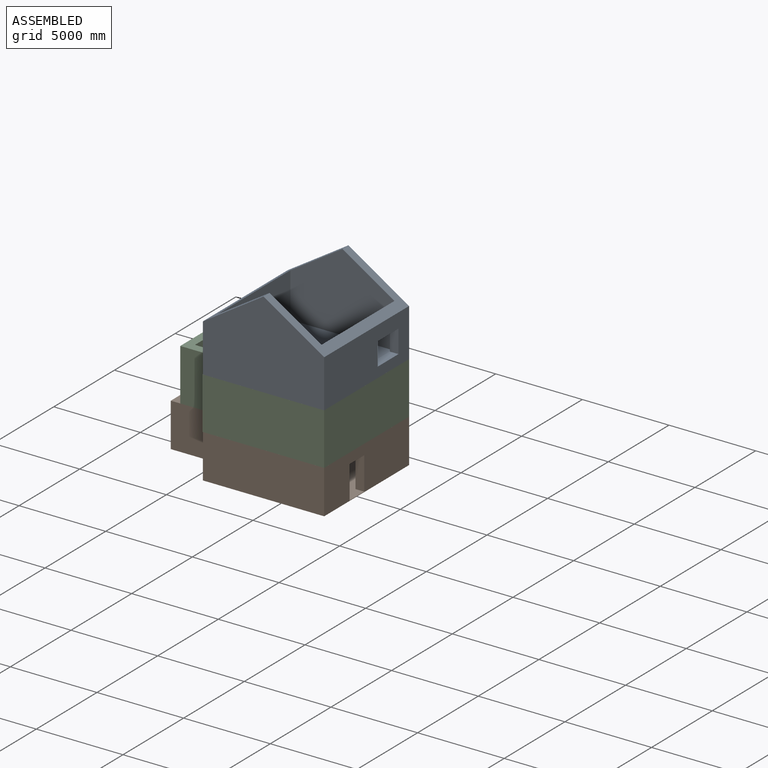
[diagram: assembled view]
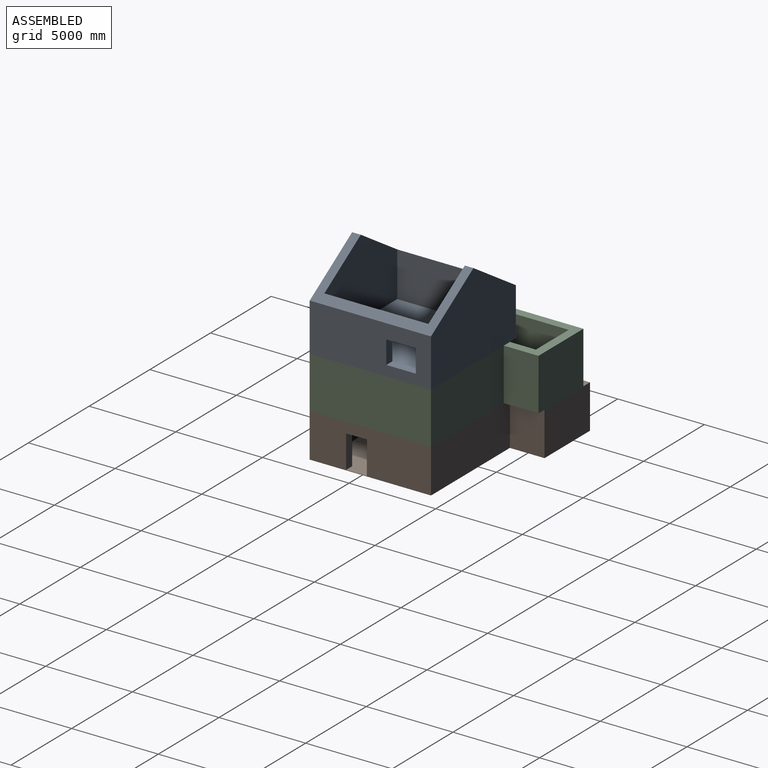
[diagram: assembled view, second angle]
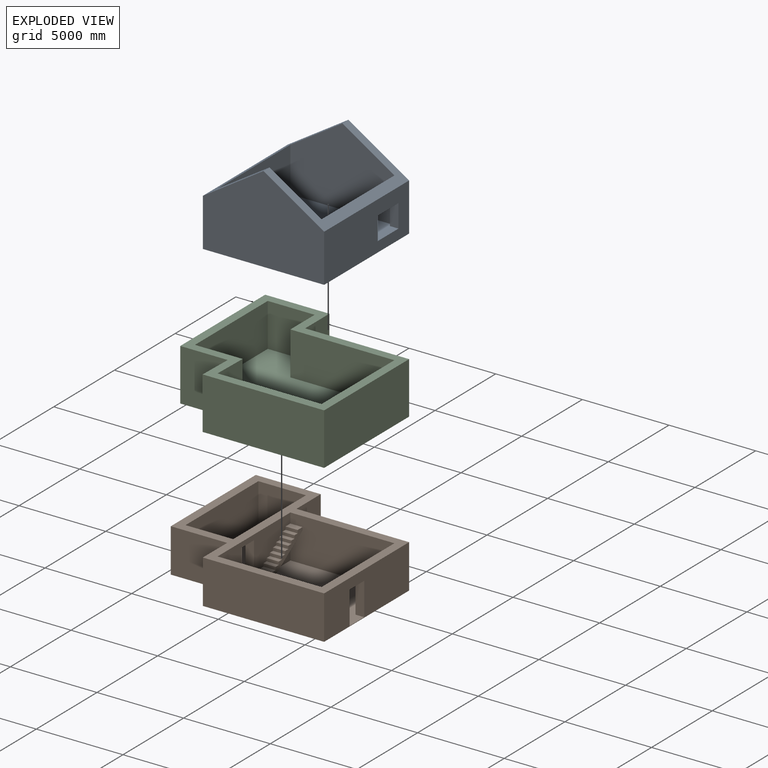
[diagram: exploded view]
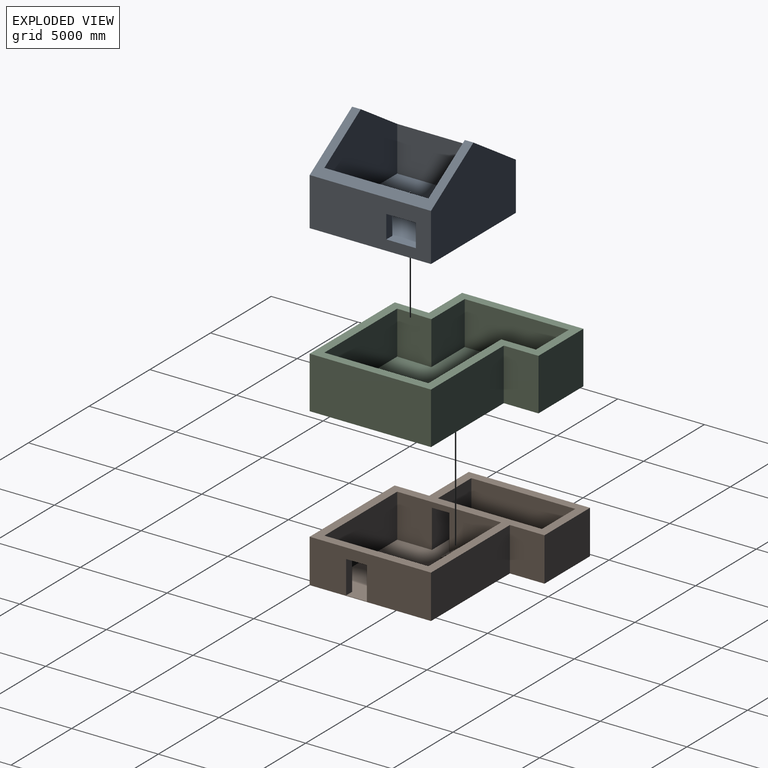
[diagram: exploded view, second angle]
ASSEMBLY  parts=3 mates=6
PART A: 16 faces, bbox 7000x7000x5000 mm
  f0: plane 6000x2588.79mm, normal (-1,0,0), area 13264949.7mm2, adj f2,f4,f5,f7,f12,f13,f14,f15
  f1: plane 7000x2770.25mm, normal (1,0,0), area 17123993mm2, adj f7,f8,f10,f11,f12,f13,f14,f15
  f2: plane 6000x4500mm, normal (0,-1,0), area 21266367.7mm2, adj f0,f3,f5,f6,f7
  f3: plane 6000x2588.79mm, normal (1,0,0), area 15532735.3mm2, adj f2,f4,f5,f6
  f4: plane 6000x4500mm, normal (0,1,0), area 21266367.7mm2, adj f0,f3,f5,f6,f7
  f5: plane 6000x6000mm, normal (0,0,1), area 36000000mm2, adj f0,f2,f3,f4
  f6: plane 7000x3500mm, normal (-0.54,0,0.84), area 7706978.8mm2, adj f2,f3,f4,f7,f9,f10,f11
  f7: plane 7000x3500mm, normal (0.54,0,0.84), area 7706978.8mm2, adj f0,f1,f2,f4,f6,f10,f11
  f8: plane 7000x7000mm, normal (0,0,-1), area 49000000mm2, adj f1,f9,f10,f11
  f9: plane 7000x2770.25mm, normal (-1,0,0), area 19391778.6mm2, adj f6,f8,f10,f11
  f10: plane 7000x5000mm, normal (0,1,0), area 27195889.3mm2, adj f1,f6,f7,f8,f9
  f11: plane 7000x5000mm, normal (0,-1,0), area 27195889.3mm2, adj f1,f6,f7,f8,f9
  f12: plane 1705.26x500mm, normal (0,0,-1), area 852627.8mm2, adj f0,f1,f13,f15
  f13: plane 1329.88x500mm, normal (0,1,0), area 664940.1mm2, adj f0,f1,f12,f14
  f14: plane 1705.26x500mm, normal (0,0,1), area 852627.8mm2, adj f0,f1,f13,f15
  f15: plane 1329.88x500mm, normal (0,-1,0), area 664940.1mm2, adj f0,f1,f12,f14
PART B: 48 faces, bbox 10250x9000x2525 mm
  f0: plane 6000x2500mm, normal (1,0,0), area 9527500mm2, adj f1,f2,f3,f8,f13,f21,f24,f26
  f1: plane 9750x8000mm, normal (0,0,1), area 53333409.2mm2, adj f0,f2,f3,f4,f5,f8,f9,f10
  f2: plane 3250x2500mm, normal (0,1,0), area 7975000mm2, adj f0,f1,f9,f11,f21,f24
  f3: plane 2200x1200mm, normal (0,-1,0), area 1222500mm2, adj f0,f1,f11,f24,f46,f47
  f4: plane 1900x500mm, normal (0,1,0), area 950000mm2, adj f1,f14,f15,f23
  f5: plane 1900x500mm, normal (0,-1,0), area 950000mm2, adj f1,f14,f15,f23
  f6: plane 2525x2000mm, normal (-1,0,0), area 5050000mm2, adj f7,f20,f21,f22
  f7: plane 7000x2525mm, normal (0,-1,0), area 17675000mm2, adj f6,f15,f21,f22
  f8: plane 6000x2500mm, normal (0,1,0), area 15000000mm2, adj f0,f1,f14,f21
  f9: plane 6000x2500mm, normal (1,0,0), area 15000000mm2, adj f1,f2,f10,f21
  f10: plane 2750x2500mm, normal (0,-1,0), area 6875000mm2, adj f1,f9,f11,f21
  f11: plane 6000x2500mm, normal (-1,0,0), area 12800000mm2, adj f1,f2,f3,f10,f21,f24
  f12: plane 2619.16x1758.08mm, normal (1,0,0), area 2302341.3mm2, adj f1,f13,f25
  f13: plane 6000x2500mm, normal (0,-1,0), area 14883155.2mm2, adj f0,f1,f12,f14,f21,f25,f26,f47
  f14: plane 6000x2500mm, normal (-1,0,0), area 12720000mm2, adj f1,f4,f5,f8,f13,f21,f23
  f15: plane 7000x2525mm, normal (1,0,0), area 15395000mm2, adj f1,f4,f5,f7,f16,f21,f22,f23
  f16: plane 6500x2525mm, normal (0,1,0), area 16412500mm2, adj f15,f17,f21,f22
  f17: plane 2525x2000mm, normal (1,0,0), area 5050000mm2, adj f16,f18,f21,f22
  f18: plane 3750x2525mm, normal (0,1,0), area 9468750mm2, adj f17,f19,f21,f22
  f19: plane 7000x2525mm, normal (-1,0,0), area 17675000mm2, adj f18,f20,f21,f22
  f20: plane 3250x2525mm, normal (0,-1,0), area 8206250mm2, adj f6,f19,f21,f22
  f21: plane 10250x9000mm, normal (0,0,1), area 20250000mm2, adj f0,f2,f6,f7,f8,f9,f10,f11
  f22: plane 10250x9000mm, normal (0,0,-1), area 72750000mm2, adj f6,f7,f15,f16,f17,f18,f19,f20
  f23: plane 1200x500mm, normal (0,0,-1), area 600000mm2, adj f4,f5,f14,f15
  f24: plane 1000x500mm, normal (0,0,-1), area 500000mm2, adj f0,f2,f3,f11
  f25: plane 2619.16x1758.08mm, normal (0,0.56,-0.83), area 2208144.3mm2, adj f1,f12,f13,f47
  f26: plane 700x400mm, normal (0,0,1), area 280000mm2, adj f0,f13,f27,f47
  f27: plane 700x175mm, normal (0,-1,0), area 122500mm2, adj f0,f26,f28,f47
  f28: plane 700x260mm, normal (0,0,1), area 182000mm2, adj f0,f27,f29,f47
  f29: plane 700x175mm, normal (0,-1,0), area 122500mm2, adj f0,f28,f30,f47
  f30: plane 700x260mm, normal (0,0,1), area 182000mm2, adj f0,f29,f31,f47
  f31: plane 700x175mm, normal (0,-1,0), area 122500mm2, adj f0,f30,f32,f47
  f32: plane 700x260mm, normal (0,0,1), area 182000mm2, adj f0,f31,f33,f47
  f33: plane 700x175mm, normal (0,-1,0), area 122500mm2, adj f0,f32,f34,f47
  f34: plane 700x260mm, normal (0,0,1), area 182000mm2, adj f0,f33,f35,f47
  f35: plane 700x175mm, normal (0,-1,0), area 122500mm2, adj f0,f34,f36,f47
  f36: plane 700x260mm, normal (0,0,1), area 182000mm2, adj f0,f35,f37,f47
  f37: plane 700x175mm, normal (0,-1,0), area 122500mm2, adj f0,f36,f38,f47
  f38: plane 700x260mm, normal (0,0,1), area 182000mm2, adj f0,f37,f39,f47
  f39: plane 700x175mm, normal (0,-1,0), area 122500mm2, adj f0,f38,f40,f47
  f40: plane 700x260mm, normal (0,0,1), area 182000mm2, adj f0,f39,f41,f47
  f41: plane 700x175mm, normal (0,-1,0), area 122500mm2, adj f0,f40,f42,f47
  f42: plane 700x260mm, normal (0,0,1), area 182000mm2, adj f0,f41,f43,f47
  f43: plane 700x175mm, normal (0,-1,0), area 122500mm2, adj f0,f42,f44,f47
  f44: plane 700x260mm, normal (0,0,1), area 182000mm2, adj f0,f43,f45,f47
  f45: plane 700x175mm, normal (0,-1,0), area 122500mm2, adj f0,f44,f46,f47
  f46: plane 700x260mm, normal (0,0,1), area 182000mm2, adj f0,f3,f45,f47
  f47: plane 3000x1925mm, normal (1,0,0), area 970158.7mm2, adj f1,f3,f13,f25,f26,f27,f28,f29
PART C: 19 faces, bbox 9706.4x8999.5x3000 mm
  f0: plane 9706.37x8999.52mm, normal (0,0,-1), area 69922549.1mm2, adj f5,f6,f7,f8,f9,f10,f11,f16
  f1: plane 6000x2500mm, normal (-1,0,0), area 15000000mm2, adj f4,f12,f17,f18
  f2: plane 2706.37x2500mm, normal (0,-1,0), area 6765925.6mm2, adj f3,f15,f17,f18
  f3: plane 6000x2500mm, normal (1,0,0), area 15000000mm2, adj f2,f14,f17,f18
  f4: plane 6000x2500mm, normal (0,1,0), area 15000000mm2, adj f1,f13,f17,f18
  f5: plane 3000x1999.52mm, normal (-1,0.02,0), area 6000000mm2, adj f0,f6,f16,f17
  f6: plane 7011.03x3000mm, normal (0,-1,0), area 21033087.2mm2, adj f0,f5,f7,f17
  f7: plane 7000x3000mm, normal (1,0,0), area 21000000mm2, adj f0,f6,f8,f17
  f8: plane 6000x3000mm, normal (0,1,0), area 18000000mm2, adj f0,f7,f9,f17
  f9: plane 3000x1999.52mm, normal (1,0,0), area 5998572.2mm2, adj f0,f8,f10,f17
  f10: plane 3706.37x3000mm, normal (0,1,0), area 11119110.7mm2, adj f0,f9,f11,f17
  f11: plane 7000x3000mm, normal (-1,0,0), area 21000000mm2, adj f0,f10,f16,f17
  f12: plane 6000x2500mm, normal (0,-1,0), area 15000000mm2, adj f1,f15,f17,f18
  f13: plane 2500x1999.52mm, normal (1,-0.02,0), area 5000000mm2, adj f4,f14,f17,f18
  f14: plane 2750x2500mm, normal (0,1,0), area 6875000mm2, adj f3,f13,f17,f18
  f15: plane 2500x1999.52mm, normal (-1,0,0), area 4998810.1mm2, adj f2,f12,f17,f18
  f16: plane 3000x2738.97mm, normal (0,-1,0), area 8216912.8mm2, adj f0,f5,f11,f17
  f17: plane 9706.37x8999.52mm, normal (0,0,1), area 17727947.1mm2, adj f1,f2,f3,f4,f5,f6,f7,f8
  f18: plane 8706.37x7999.52mm, normal (0,0,1), area 52194602mm2, adj f1,f2,f3,f4,f12,f13,f14,f15
PLACE A t=(481.6,24761.33,-1525)mm
PLACE B t=(184.7,3841.49,-7025)mm
PLACE C t=(838.59,12663.4,-4525)mm
MATE planar C.f7 <-> B.f15  axis (1,0,0) through (869.86,3841.49,-1525)mm
MATE planar C.f0 <-> B.f21  axis (0,0,-1) through (-4029.76,4512.47,-4525)mm
MATE planar C.f8 <-> B.f16  axis (0,1,0) through (-2130.14,7341.49,-3025)mm
MATE planar A.f1 <-> C.f7  axis (1,0,0) through (869.86,3606.56,-123.24)mm
MATE planar A.f11 <-> C.f6  axis (0,-1,0) through (-2630.14,341.49,470.88)mm
MATE planar A.f8 <-> C.f17  axis (0,0,-1) through (-2630.14,3841.49,-1525)mm
